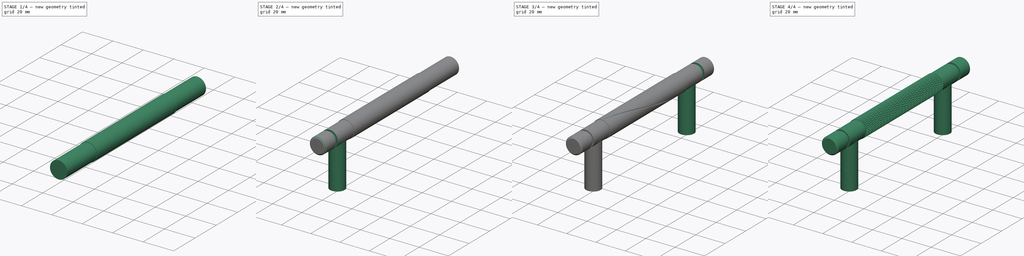
[diagram: build sequence overview — one tinted view per stage of 4, left to right]
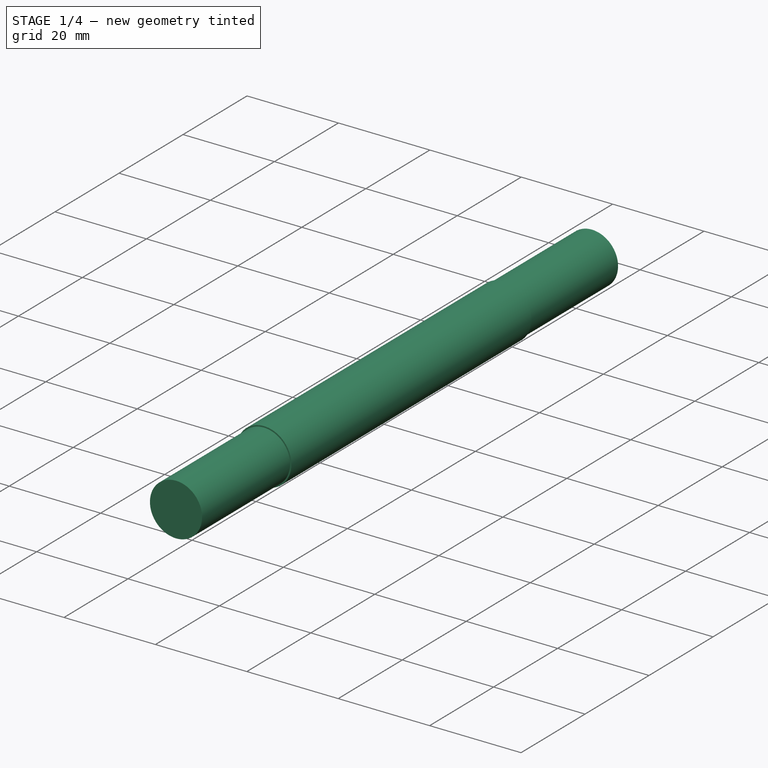
[diagram: stage 1 of 4 — iso view after this stage's code; geometry added in this stage tinted green]
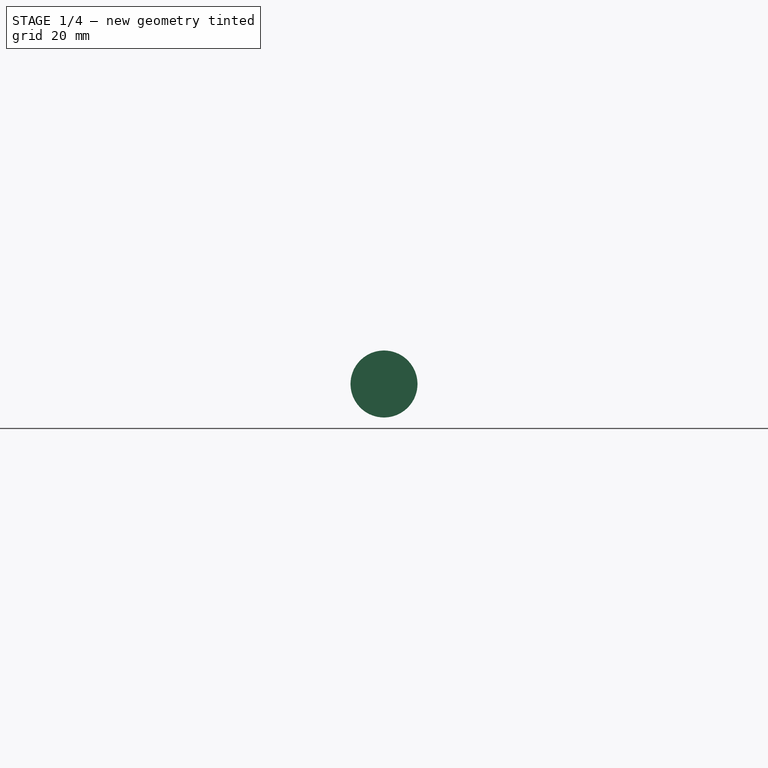
[diagram: stage 1 of 4 — front view after this stage's code; geometry added in this stage tinted green]
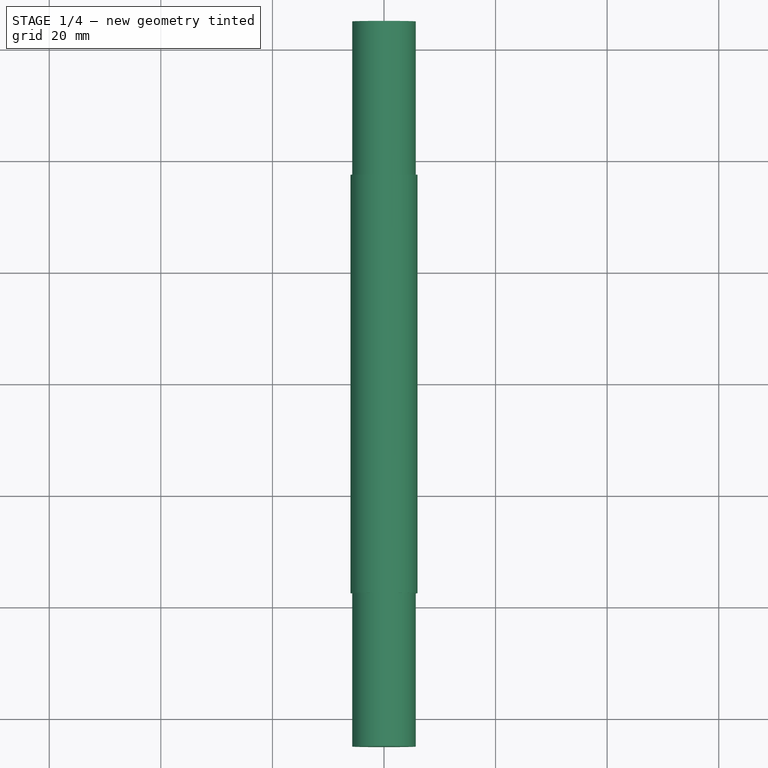
[diagram: stage 1 of 4 — top view after this stage's code; geometry added in this stage tinted green]
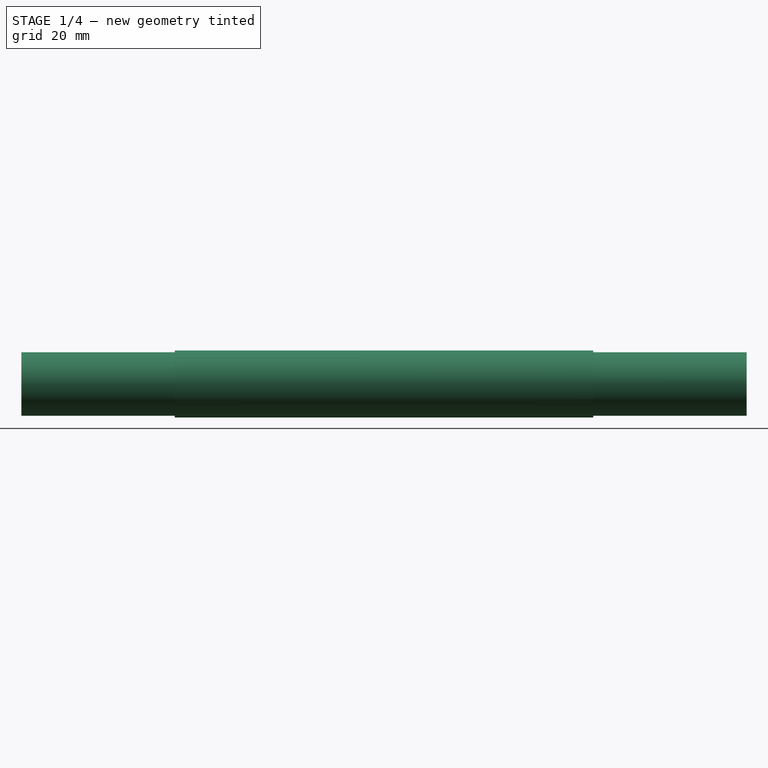
[diagram: stage 1 of 4 — right view after this stage's code; geometry added in this stage tinted green]
FCSTD DOCUMENT  (FreeCAD 1.0R39319 (Git))
Label: KnurledCabinet
License: All rights reserved
LicenseURL: https://en.wikipedia.org/wiki/All_rights_reserved
objects: PartDesign::AdditiveCylinder×3, Sketcher::SketchObject×2, PartDesign::SubtractiveHelix×2, PartDesign::Groove×1, PartDesign::Chamfer×1, PartDesign::Mirrored×1, PartDesign::Hole×1, PartDesign::PolarPattern×1, PartDesign::Body×1
note: 33 computed .brp shape members not serialized (recipe doc carries the construction recipe); baked Part::Feature solids carry a one-line shape summary decoded from their .brp

FEATURE [PartDesign::AdditiveCylinder] Cylinder
  Angle = 360
  AttacherType = Attacher::AttachEngine3D
  AttachmentOffset = pos=(0,0,-65) rot=(0,0,1;0rad)
  AttachmentSupport = -> [XZ_Plane]
  FirstAngle = 0
  Height = 130
  MapMode = 5
  Placement = pos=(0,65,-1.44e-14) rot=(1,0,0;1.5708rad)
  Radius = 5.7
  Refine = true
  SecondAngle = 0
  Suppressed = false
FEATURE [PartDesign::AdditiveCylinder] Cylinder001
  Angle = 360
  AttacherType = Attacher::AttachEngine3D
  AttachmentOffset = pos=(0,0,-37.5) rot=(0,0,1;0rad)
  AttachmentSupport = -> [XZ_Plane]
  BaseFeature = -> Cylinder
  FirstAngle = 0
  Height = 75
  MapMode = 5
  Placement = pos=(0,37.5,-8.3e-15) rot=(1,0,0;1.5708rad)
  Radius = 6
  Refine = true
  SecondAngle = 0
  Suppressed = false
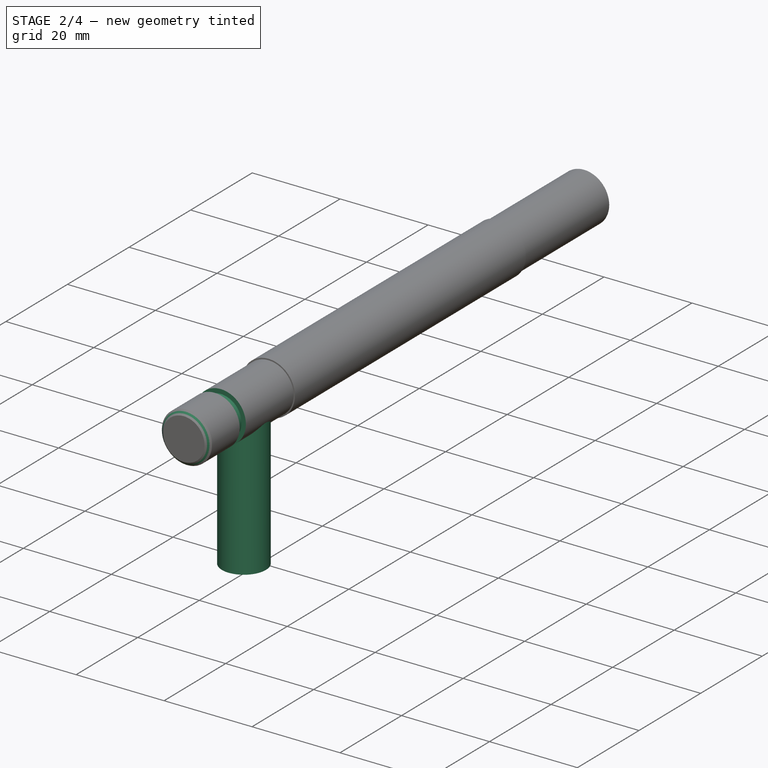
[diagram: stage 2 of 4 — iso view after this stage's code; geometry added in this stage tinted green]
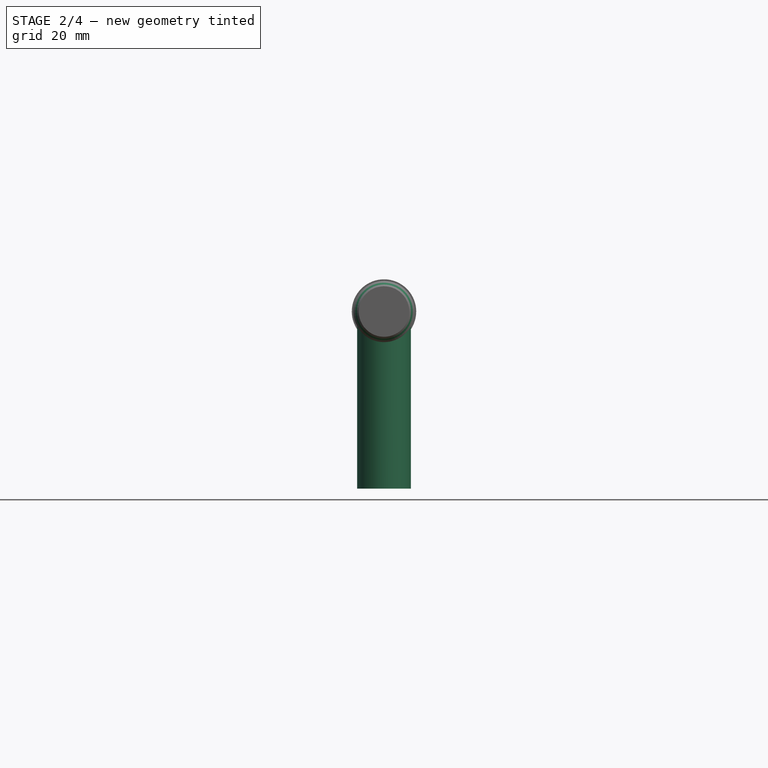
[diagram: stage 2 of 4 — front view after this stage's code; geometry added in this stage tinted green]
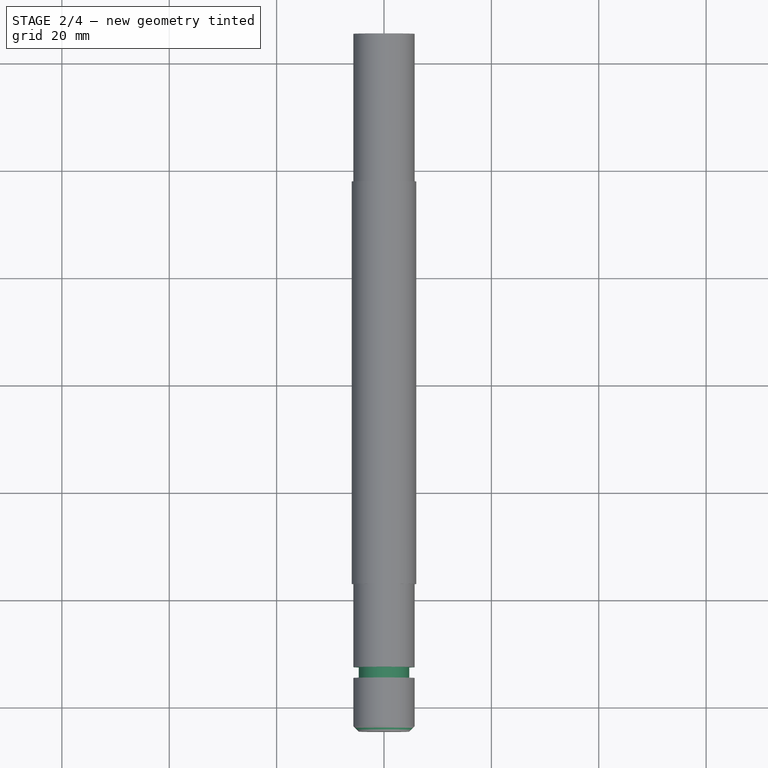
[diagram: stage 2 of 4 — top view after this stage's code; geometry added in this stage tinted green]
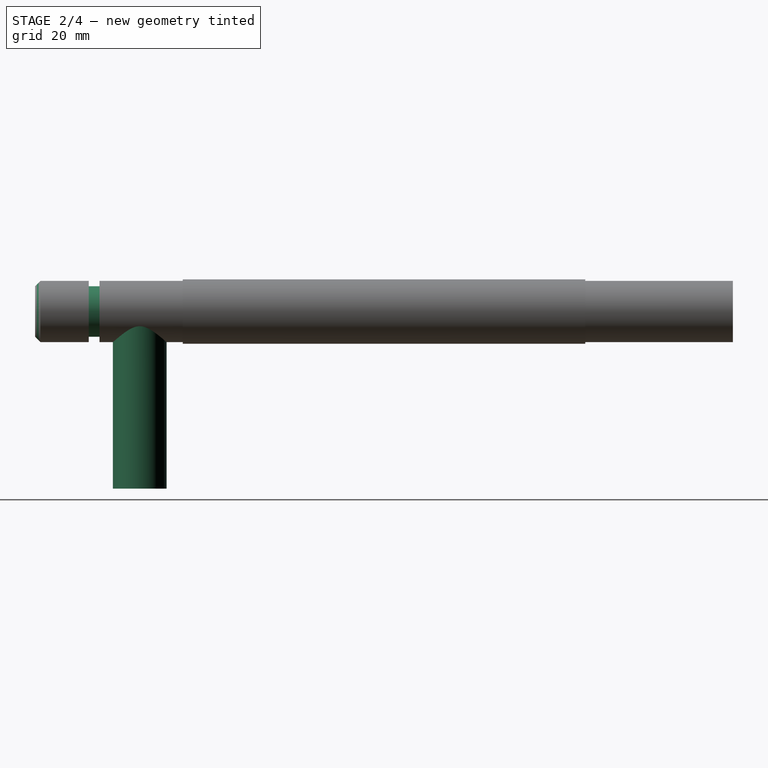
[diagram: stage 2 of 4 — right view after this stage's code; geometry added in this stage tinted green]
FEATURE [PartDesign::AdditiveCylinder] Cylinder002
  Angle = 360
  AttacherType = Attacher::AttachEngine3D
  AttachmentOffset = pos=(0,-45.5,0) rot=(0,0,1;0rad)
  AttachmentSupport = -> [XY_Plane]
  BaseFeature = -> Cylinder001
  FirstAngle = 0
  Height = 33
  MapMode = 5
  Placement = pos=(0,-45.5,0) rot=(0,1,0;3.14159rad)
  Radius = 5
  Refine = true
  SecondAngle = 0
  Suppressed = false
FEATURE [Sketcher::SketchObject] Sketch
  ArcFitTolerance = 1e-06
  AttachmentSupport = -> [YZ_Plane]
  ExternalGeometry = -> [Cylinder002]
  FullyConstrained = true
  MakeInternals = false
  MapMode = 5
  Placement = pos=(0,0,0) rot=(0.57735,0.57735,0.57735;2.0944rad)
  sketch-geometry (4):
    g0: LineSegment StartX=-55 StartY=9.7 StartZ=0 EndX=-55 EndY=4.7 EndZ=0
    g1: LineSegment StartX=-55 StartY=4.7 StartZ=0 EndX=-53 EndY=4.7 EndZ=0
    g2: LineSegment StartX=-53 StartY=4.7 StartZ=0 EndX=-53 EndY=9.7 EndZ=0
    g3: LineSegment StartX=-53 StartY=9.7 StartZ=0 EndX=-55 EndY=9.7 EndZ=0
  constraints (12):
    c: Coincident(g0,g1)
    c: Coincident(g1,g2)
    c: Coincident(g2,g3)
    c: Coincident(g3,g0)
    c: Vertical(g0)
    c: Vertical(g2)
    c: Horizontal(g1)
    c: Horizontal(g3)
    c: Distance(g0,g-3) = 10
    c: DistanceY(g0,g-3) = 1
    c: DistanceY(g2,g2) = 5
    c: DistanceX(g3,g3) = 2
FEATURE [PartDesign::Groove] Groove
  Angle = 360
  Angle2 = 60
  Axis = (1e-16,1,-1e-16)
  Base = (0,0,0)
  BaseFeature = -> Cylinder002
  Placement = pos=(0,-45.5,0) rot=(0,1,0;3.14159rad)
  Profile = -> Sketch
  ReferenceAxis = -> Y_Axis
  Refine = true
  Reversed = true
  Suppressed = false
  Type = 0
FEATURE [PartDesign::Chamfer] Chamfer
  Angle = 45
  Base = -> Groove [Edge18]
  BaseFeature = -> Groove
  ChamferType = 0
  FlipDirection = false
  Placement = pos=(0,-45.5,0) rot=(0,1,0;3.14159rad)
  Refine = true
  Size = 1
  Size2 = 1
  SupportTransform = false
  Suppressed = false
  UseAllEdges = false
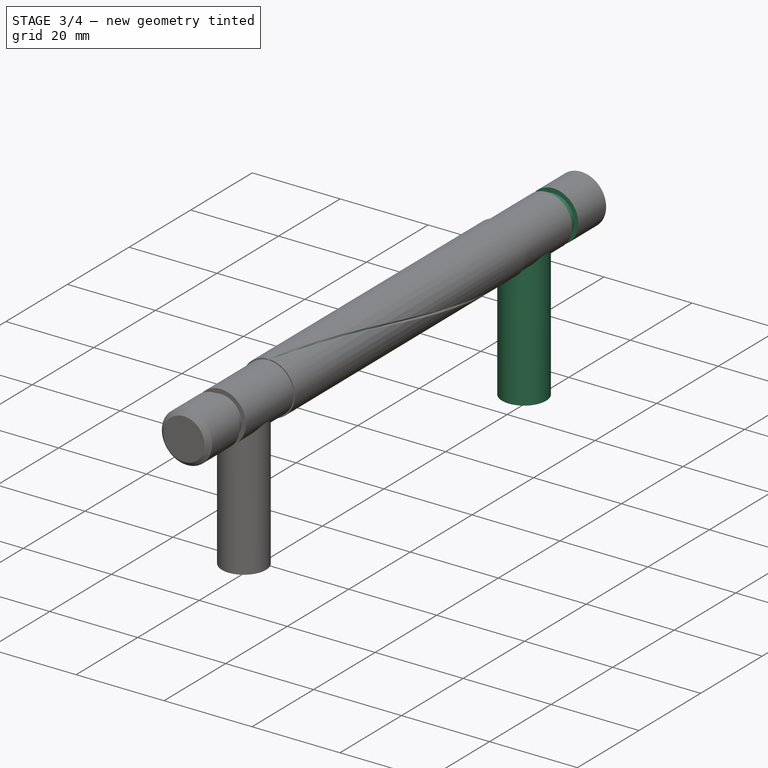
[diagram: stage 3 of 4 — iso view after this stage's code; geometry added in this stage tinted green]
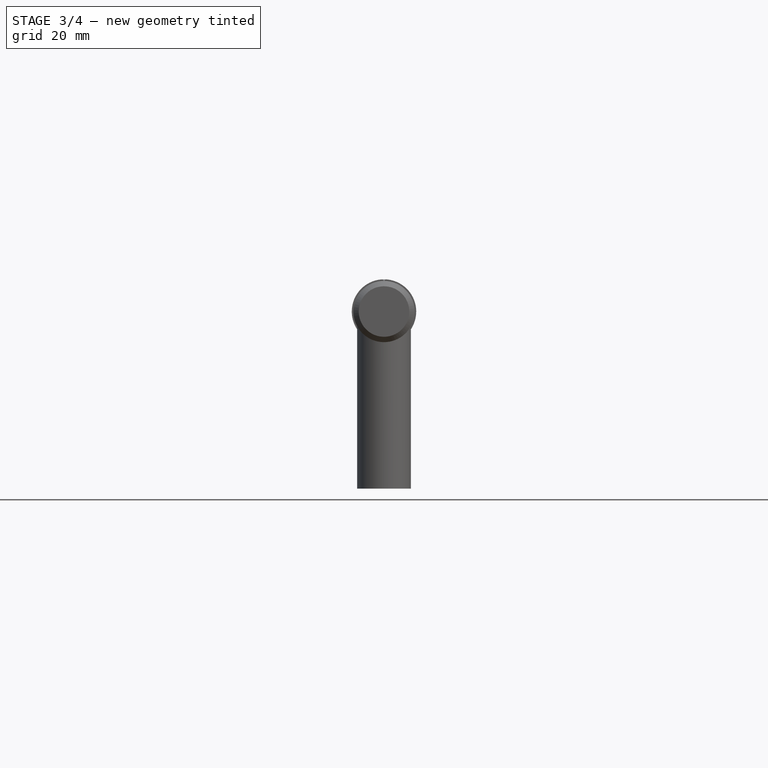
[diagram: stage 3 of 4 — front view after this stage's code; geometry added in this stage tinted green]
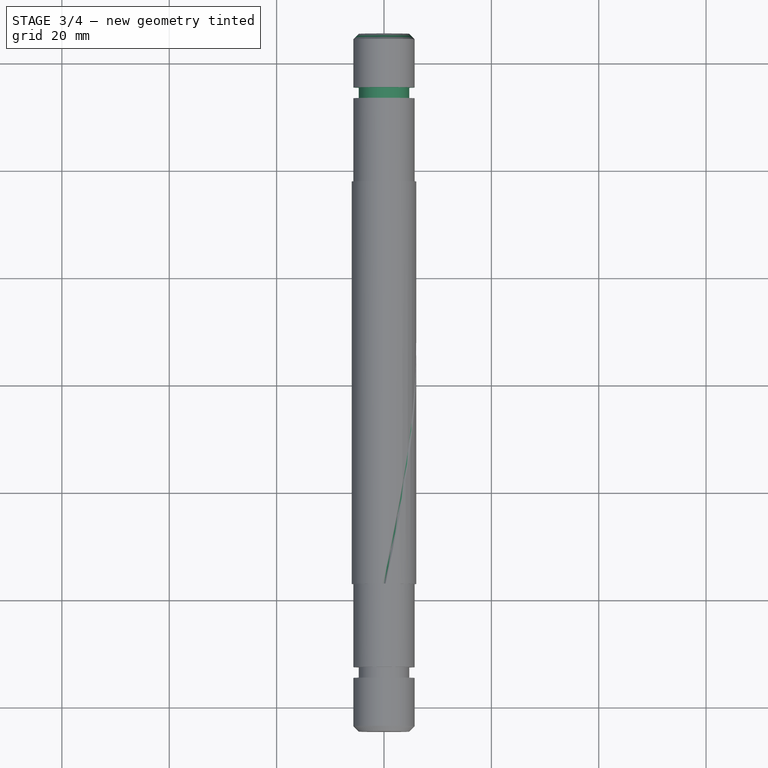
[diagram: stage 3 of 4 — top view after this stage's code; geometry added in this stage tinted green]
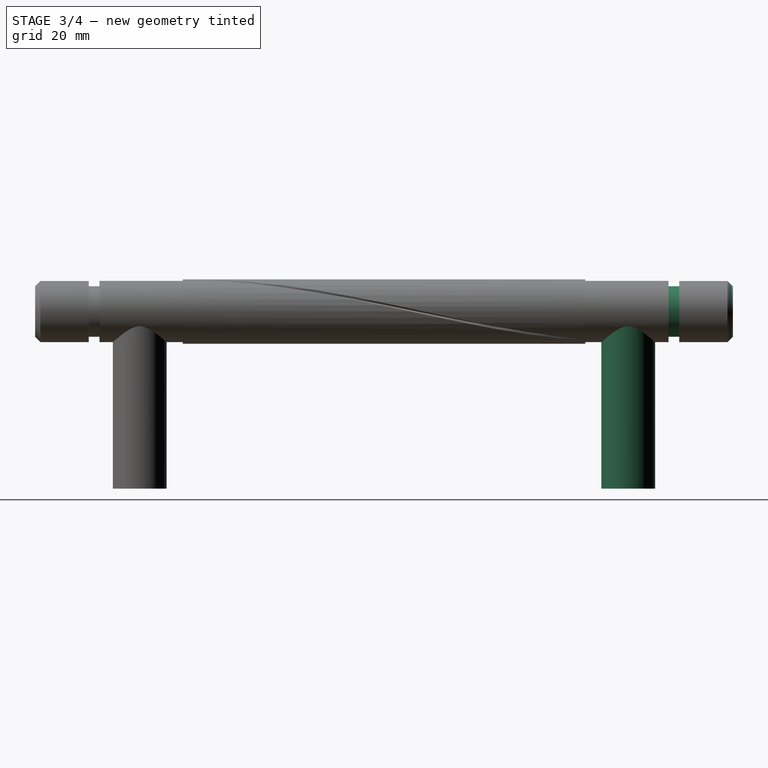
[diagram: stage 3 of 4 — right view after this stage's code; geometry added in this stage tinted green]
FEATURE [PartDesign::Mirrored] Mirrored
  BaseFeature = -> Chamfer
  MirrorPlane = -> XZ_Plane
  Originals = -> [Cylinder002,Groove,Chamfer]
  Placement = pos=(0,-45.5,0) rot=(0,1,0;3.14159rad)
  Refine = true
  Suppressed = false
  TransformMode = 0
FEATURE [PartDesign::Hole] Hole
  BaseFeature = -> Mirrored
  CustomThreadClearance = 0
  Depth = 16
  DepthType = 0
  Diameter = 4.5
  DrillForDepth = false
  DrillPoint = 1
  DrillPointAngle = 118
  HoleCutCountersinkAngle = 90
  HoleCutCustomValues = false
  HoleCutDepth = 0
  HoleCutDiameter = 6.1
  HoleCutType = 0
  ModelThread = true
  Placement = pos=(0,-45.5,0) rot=(0,1,0;3.14159rad)
  Profile = -> Mirrored [Face11,Face17]
  Refine = true
  Suppressed = false
  Tapered = false
  TaperedAngle = 90
  ThreadClass = 0
  ThreadDepth = 16
  ThreadDepthType = 0
  ThreadDirection = 0
  ThreadFit = 0
  ThreadSize = 11
  ThreadType = 1
  Threaded = false
  UseCustomThreadClearance = false
FEATURE [Sketcher::SketchObject] Sketch001
  ArcFitTolerance = 1e-06
  AttachmentSupport = -> [Hole]
  FullyConstrained = true
  MakeInternals = false
  MapMode = 5
  Placement = pos=(0,-37.5,-1.8e-15) rot=(0,0.707107,-0.707107;3.14159rad)
  sketch-geometry (3):
    g0: LineSegment StartX=-0.5 StartY=-6.2 StartZ=0 EndX=0.5 EndY=-6.2 EndZ=0
    g1: LineSegment StartX=-0.5 StartY=-6.2 StartZ=0 EndX=0 EndY=-5.7 EndZ=0
    g2: LineSegment StartX=0 StartY=-5.7 StartZ=0 EndX=0.5 EndY=-6.2 EndZ=0
  constraints (9):
    c: Horizontal(g0)
    c: DistanceX(g0,g0) = 1
    c: Coincident(g1,g0)
    c: PointOnObject(g1,g-2)
    c: Coincident(g2,g1)
    c: Coincident(g2,g0)
    c: Equal(g2,g1)
    c: Perpendicular(g1,g2)
    c: Distance(g1,g-1) = 5.7
FEATURE [PartDesign::SubtractiveHelix] SubtractiveHelix
  Angle = 0
  Axis = (1e-16,1,-1e-16)
  Base = (0,0,0)
  BaseFeature = -> Hole
  Growth = 0
  HasBeenEdited = true
  Height = 75
  LeftHanded = false
  Mode = 0
  Outside = false
  Pitch = 175
  Placement = pos=(0,-45.5,0) rot=(0,1,0;3.14159rad)
  Profile = -> Sketch001
  ReferenceAxis = -> Y_Axis
  Refine = true
  Suppressed = false
  Tolerance = 0.1
  Turns = 0.428571
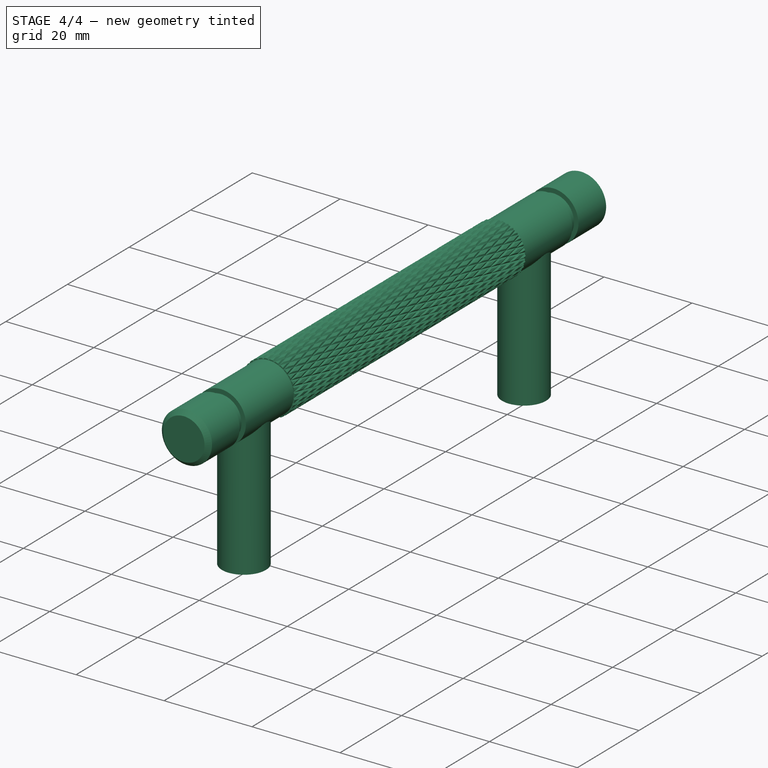
[diagram: stage 4 of 4 — iso view after this stage's code; geometry added in this stage tinted green]
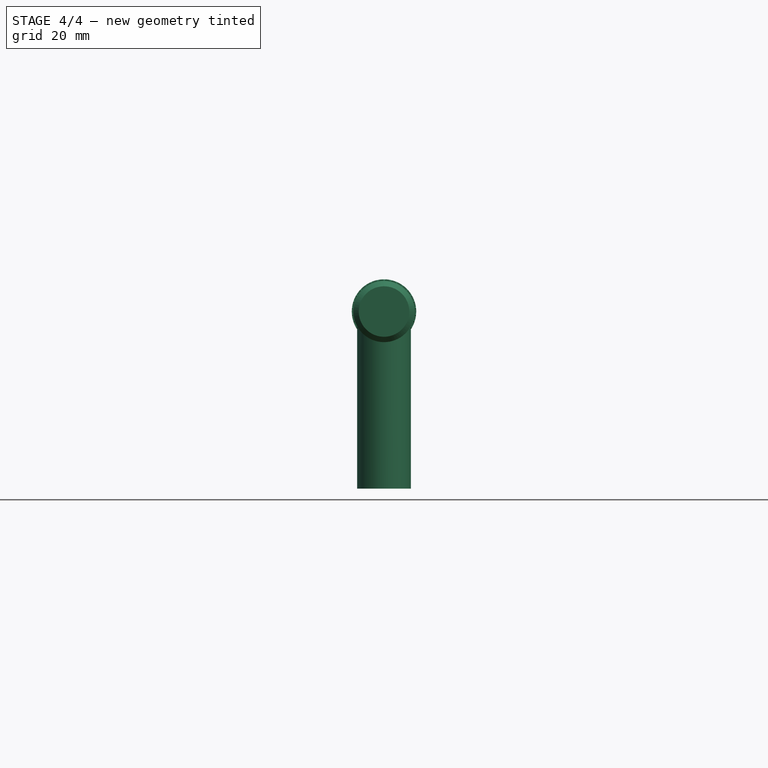
[diagram: stage 4 of 4 — front view after this stage's code; geometry added in this stage tinted green]
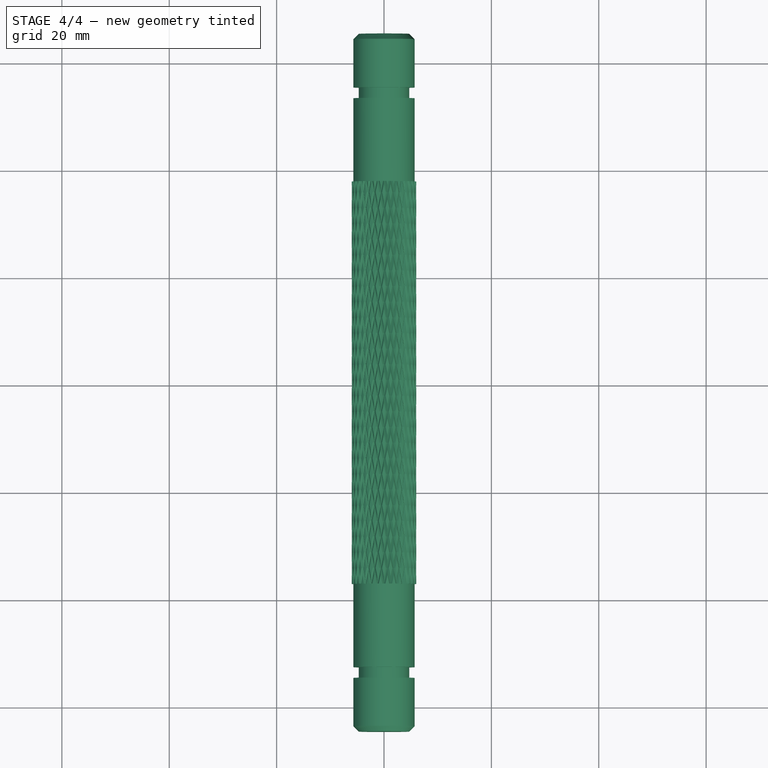
[diagram: stage 4 of 4 — top view after this stage's code; geometry added in this stage tinted green]
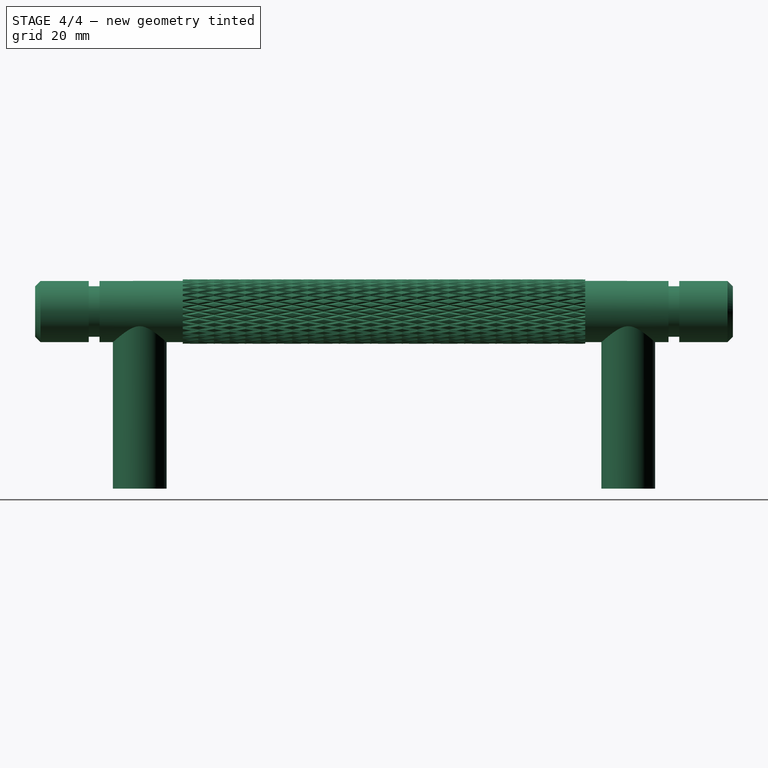
[diagram: stage 4 of 4 — right view after this stage's code; geometry added in this stage tinted green]
FEATURE [PartDesign::SubtractiveHelix] SubtractiveHelix001
  Angle = 0
  Axis = (1e-16,1,-1e-16)
  Base = (0,0,0)
  BaseFeature = -> SubtractiveHelix
  Growth = 0
  HasBeenEdited = true
  Height = 75
  LeftHanded = true
  Mode = 0
  Outside = false
  Pitch = 175
  Placement = pos=(0,-45.5,0) rot=(0,1,0;3.14159rad)
  Profile = -> Sketch001
  ReferenceAxis = -> Y_Axis
  Refine = true
  Suppressed = false
  Tolerance = 0.1
  Turns = 0.428571
FEATURE [PartDesign::PolarPattern] PolarPattern
  Angle = 360
  Axis = -> Y_Axis
  BaseFeature = -> SubtractiveHelix001
  Mode = 0
  Occurrences = 30
  Offset = 120
  Originals = -> [SubtractiveHelix,SubtractiveHelix001]
  Placement = pos=(0,-45.5,0) rot=(0,1,0;3.14159rad)
  Refine = true
  Suppressed = false
  TransformMode = 0
FEATURE [PartDesign::Body] Body
  AllowCompound = false
  Group = -> [Cylinder,Cylinder001,Cylinder002,Sketch,Groove,Chamfer,Mirrored,Hole,Sketch001,SubtractiveHelix,SubtractiveHelix001,PolarPattern]
  Origin = -> Origin
  Tip = -> PolarPattern
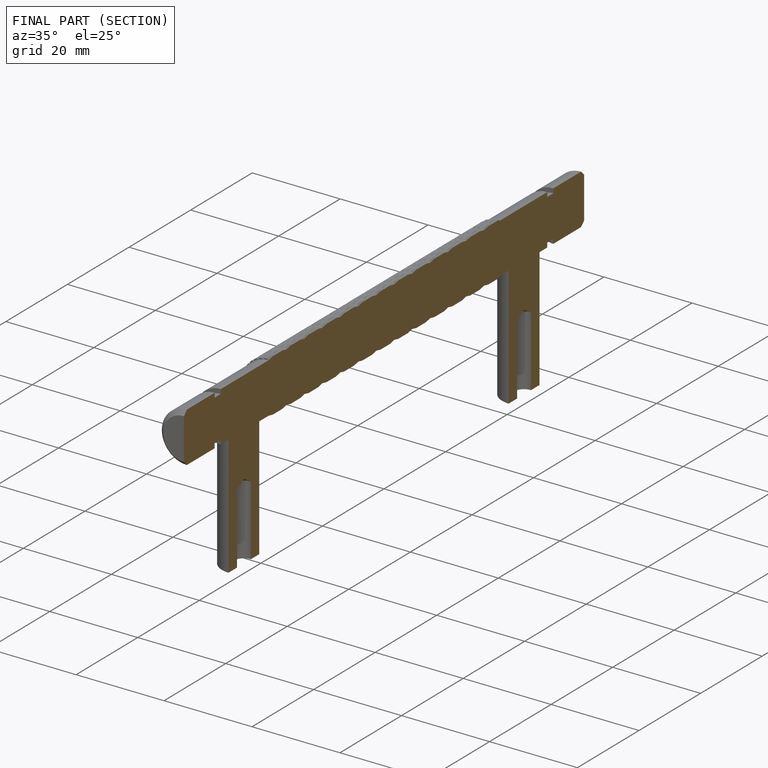
[diagram: finished part — half-section view (interior)]
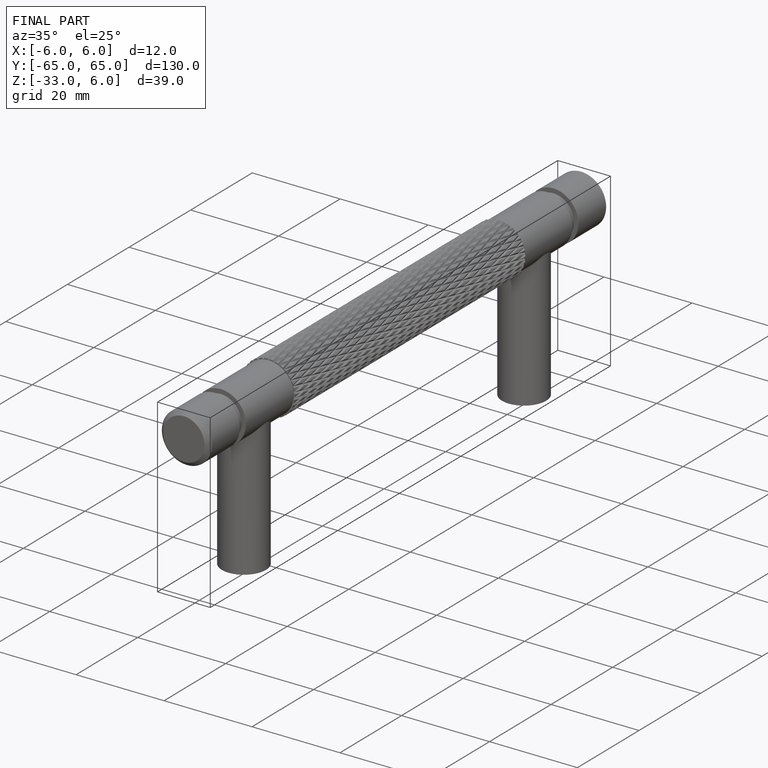
[diagram: finished part — iso view with bounding-box wireframe]
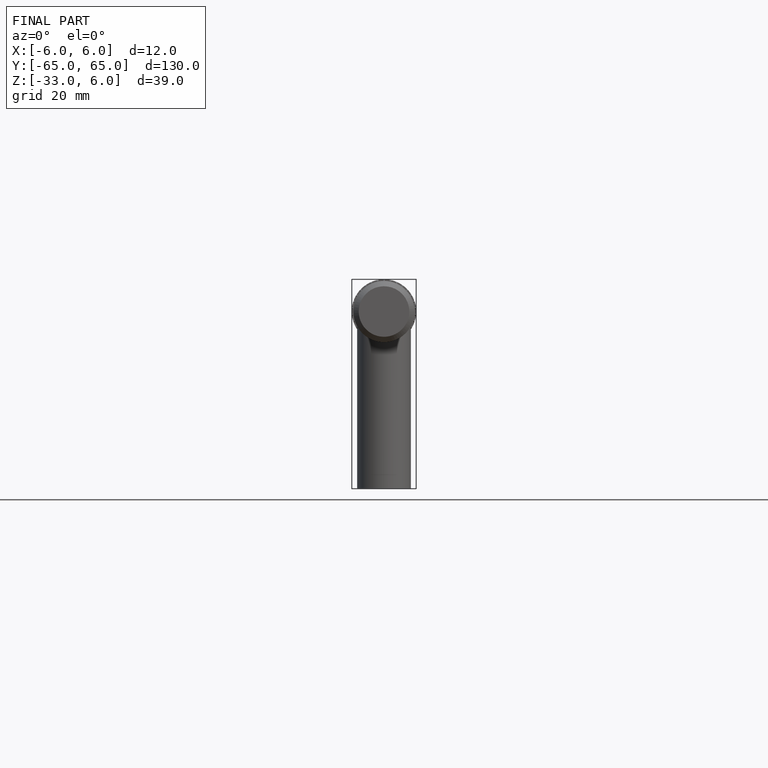
[diagram: finished part — front view with bounding-box wireframe]
